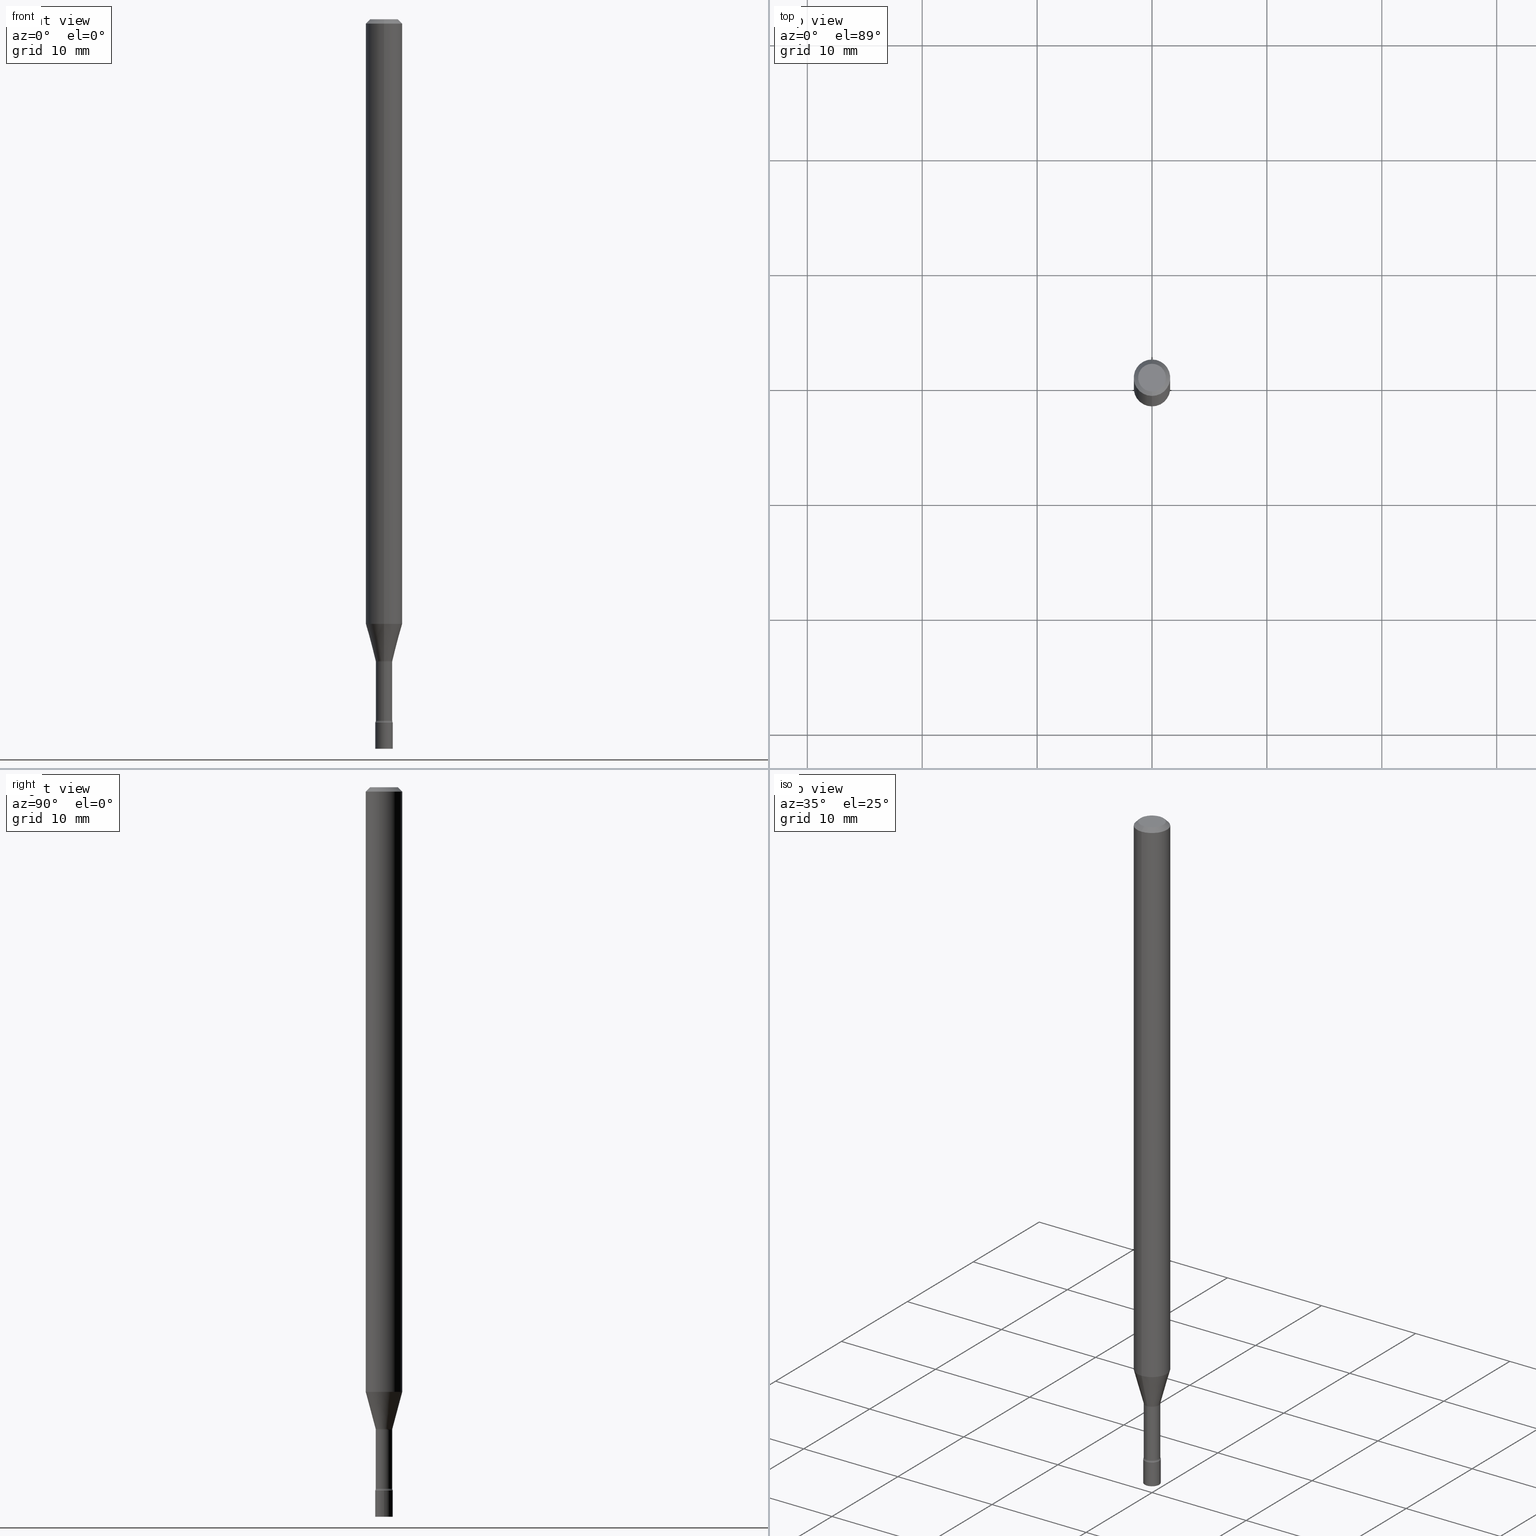
[diagram: canonical four-view strip — front | top / right | iso, engineering-drawing reading convention]
A machine part, canonical four-view strip (front | top / right | iso — engineering-drawing reading convention). The complete STEP part file that produces these views, byte-faithful:
ISO-10303-21;
HEADER;
FILE_DESCRIPTION (( 'STEP AP203' ),
    '1' );
FILE_NAME ('03547.STEP',
    '2024-03-08T21:45:39',
    ( '' ),
    ( '' ),
    'SwSTEP 2.0',
    'SolidWorks 2023',
    '' );
FILE_SCHEMA (( 'CONFIG_CONTROL_DESIGN' ));
ENDSEC;

DATA;
#1 = CARTESIAN_POINT ( 'NONE',  ( 5.876258667808851450E-29, -8.389448752772155933E-15, -2.402875394747777449 ) ) ;
#2 = CIRCLE ( 'NONE', #193, 0.01500000000000001159 ) ;
#3 = CONICAL_SURFACE ( 'NONE', #359, 0.06250000000000000000, 0.7853981633974483900 ) ;
#4 = CARTESIAN_POINT ( 'NONE',  ( 7.071634342479594361E-46, -1.009606916039626417E-31, -2.891679403986090112E-17 ) ) ;
#5 = DIRECTION ( 'NONE',  ( -2.445511190739736583E-29, 3.491420641748579346E-15, 1.000000000000000000 ) ) ;
#6 = VERTEX_POINT ( 'NONE', #299 ) ;
#7 = APPROVAL_STATUS ( 'not_yet_approved' ) ;
#8 = EDGE_LOOP ( 'NONE', ( #122, #386, #17, #406 ) ) ;
#9 = DIRECTION ( 'NONE',  ( -6.982962677686265922E-15, -1.000000000000000000, 3.483106191921935554E-15 ) ) ;
#10 = DIRECTION ( 'NONE',  ( 7.105427357601001859E-15, 1.000000000000000000, 0.000000000000000000 ) ) ;
#11 = PERSON_AND_ORGANIZATION ( #498, #143 ) ;
#12 = CONICAL_SURFACE ( 'NONE', #308, 0.02871111260566397427, 0.2617993877991500740 ) ;
#13 = CIRCLE ( 'NONE', #62, 0.02999999999999999889 ) ;
#14 = APPROVAL_ROLE ( '' ) ;
#15 = CARTESIAN_POINT ( 'NONE',  ( -0.02999999999999999889, 2.131628207280300479E-16, -1.475680527076471707E-30 ) ) ;
#16 = ORIENTED_EDGE ( 'NONE', *, *, #87, .F. ) ;
#17 = ORIENTED_EDGE ( 'NONE', *, *, #96, .T. ) ;
#18 = PERSON_AND_ORGANIZATION_ROLE ( 'creator' ) ;
#19 = DIRECTION ( 'NONE',  ( -1.000000000000000000, 6.982962677686265922E-15, -4.876176775795935793E-29 ) ) ;
#20 = DIRECTION ( 'NONE',  ( -2.445511190739736583E-29, 3.491420641748579346E-15, 1.000000000000000000 ) ) ;
#21 = AXIS2_PLACEMENT_3D ( 'NONE', #44, #114, #75 ) ;
#22 = CIRCLE ( 'NONE', #321, 0.02820000000000000631 ) ;
#23 = CARTESIAN_POINT ( 'NONE',  ( 3.668266786109612039E-31, -5.237130962622879693E-17, -0.01500000000000003067 ) ) ;
#24 = ORIENTED_EDGE ( 'NONE', *, *, #87, .T. ) ;
#25 = DIRECTION ( 'NONE',  ( 2.445511190739736583E-29, -3.491420641748579346E-15, -1.000000000000000000 ) ) ;
#26 = EDGE_CURVE ( 'NONE', #434, #364, #2, .T. ) ;
#27 = FACE_OUTER_BOUND ( 'NONE', #171, .T. ) ;
#28 = CARTESIAN_POINT ( 'NONE',  ( 2.094888803306491331E-16, 0.02999999999999126976, -2.500000000000000000 ) ) ;
#29 = CARTESIAN_POINT ( 'NONE',  ( -4.364351673553916201E-16, -0.06250000000000000000, 2.182137901092862091E-16 ) ) ;
#30 = FACE_OUTER_BOUND ( 'NONE', #190, .T. ) ;
#31 = VECTOR ( 'NONE', #438, 39.37007874015748143 ) ;
#32 = AXIS2_PLACEMENT_3D ( 'NONE', #252, #419, #249 ) ;
#33 = ORIENTED_EDGE ( 'NONE', *, *, #265, .F. ) ;
#34 = PRODUCT_DEFINITION_SHAPE ( 'NONE', 'NONE',  #465 ) ;
#35 = CARTESIAN_POINT ( 'NONE',  ( -2.004886277601454764E-16, -0.02871111260567164869, -2.198092501787273001 ) ) ;
#36 = EDGE_CURVE ( 'NONE', #129, #92, #514, .T. ) ;
#37 = DIRECTION ( 'NONE',  ( 6.982962677686265922E-15, 1.000000000000000000, -3.491420641748579346E-15 ) ) ;
#38 = AXIS2_PLACEMENT_3D ( 'NONE', #52, #48, #210 ) ;
#39 = AXIS2_PLACEMENT_3D ( 'NONE', #392, #147, #189 ) ;
#40 = DIRECTION ( 'NONE',  ( -2.445511190739736583E-29, 3.491420641748579346E-15, 1.000000000000000000 ) ) ;
#41 = FACE_OUTER_BOUND ( 'NONE', #261, .T. ) ;
#42 = CARTESIAN_POINT ( 'NONE',  ( -3.773273898774340269E-16, -0.04749999999999999362, 1.369256864431966220E-16 ) ) ;
#43 = EDGE_CURVE ( 'NONE', #267, #416, #138, .T. ) ;
#44 = CARTESIAN_POINT ( 'NONE',  ( 3.668266786109612039E-31, -5.237130962622879693E-17, -0.01500000000000003067 ) ) ;
#45 = DIRECTION ( 'NONE',  ( -2.445511190739736863E-29, 3.491420641748579346E-15, 1.000000000000000000 ) ) ;
#46 = AXIS2_PLACEMENT_3D ( 'NONE', #333, #374, #493 ) ;
#47 = DIRECTION ( 'NONE',  ( -2.445511190739736583E-29, 3.491420641748579346E-15, 1.000000000000000000 ) ) ;
#48 = DIRECTION ( 'NONE',  ( -2.445511190739736583E-29, 3.491420641748579346E-15, 1.000000000000000000 ) ) ;
#49 = ADVANCED_FACE ( 'NONE', ( #291 ), #457, .T. ) ;
#50 = ORIENTED_EDGE ( 'NONE', *, *, #218, .F. ) ;
#51 = VERTEX_POINT ( 'NONE', #452 ) ;
#52 = CARTESIAN_POINT ( 'NONE',  ( 5.067076339536280147E-29, -7.234190950408780565E-15, -2.071990657300387895 ) ) ;
#53 = CIRCLE ( 'NONE', #90, 0.06250000000000000000 ) ;
#54 = APPROVAL_PERSON_ORGANIZATION ( #451, #519, #496 ) ;
#55 = EDGE_LOOP ( 'NONE', ( #131, #325, #450, #397 ) ) ;
#56 = ORIENTED_EDGE ( 'NONE', *, *, #343, .T. ) ;
#57 = EDGE_CURVE ( 'NONE', #390, #61, #133, .T. ) ;
#58 = COORDINATED_UNIVERSAL_TIME_OFFSET ( 5, 0, .BEHIND. ) ;
#59 = CARTESIAN_POINT ( 'NONE',  ( -4.364351673553912750E-16, -0.06250000000000005551, -0.01499999999999981209 ) ) ;
#60 = VECTOR ( 'NONE', #45, 39.37007874015748143 ) ;
#61 = VERTEX_POINT ( 'NONE', #362 ) ;
#62 = AXIS2_PLACEMENT_3D ( 'NONE', #154, #517, #231 ) ;
#63 = DIRECTION ( 'NONE',  ( -1.807323732225328562E-15, -0.2588190451025179639, 0.9659258262890690894 ) ) ;
#64 = ORIENTED_EDGE ( 'NONE', *, *, #444, .F. ) ;
#65 = EDGE_CURVE ( 'NONE', #92, #129, #349, .T. ) ;
#66 = VERTEX_POINT ( 'NONE', #119 ) ;
#67 = AXIS2_PLACEMENT_3D ( 'NONE', #166, #329, #488 ) ;
#68 = DIRECTION ( 'NONE',  ( 1.000000000000000000, -6.982962677686267499E-15, 4.876176775795936353E-29 ) ) ;
#69 = CC_DESIGN_APPROVAL ( #519, ( #167 ) ) ;
#70 = EDGE_CURVE ( 'NONE', #51, #129, #159, .T. ) ;
#71 = CARTESIAN_POINT ( 'NONE',  ( -2.094888803305290783E-16, -0.03000000000000842271, -2.410000000000000142 ) ) ;
#72 = AXIS2_PLACEMENT_3D ( 'NONE', #239, #508, #188 ) ;
#73 = AXIS2_PLACEMENT_3D ( 'NONE', #79, #443, #482 ) ;
#74 = CIRCLE ( 'NONE', #381, 0.01500000000000002720 ) ;
#75 = DIRECTION ( 'NONE',  ( 6.982962677686265922E-15, 1.000000000000000000, -3.483106191921935554E-15 ) ) ;
#76 = LINE ( 'NONE', #476, #478 ) ;
#77 = CARTESIAN_POINT ( 'NONE',  ( 0.000000000000000000, 0.000000000000000000, 0.000000000000000000 ) ) ;
#78 = DIRECTION ( 'NONE',  ( -6.982962677686265922E-15, -1.000000000000000000, 3.491420641748579346E-15 ) ) ;
#79 = CARTESIAN_POINT ( 'NONE',  ( 5.375459811401880922E-29, -7.674465533212861118E-15, -2.198092501787273001 ) ) ;
#80 = DIRECTION ( 'NONE',  ( -2.445511190739736583E-29, 3.491420641748579346E-15, 1.000000000000000000 ) ) ;
#81 = AXIS2_PLACEMENT_3D ( 'NONE', #442, #40, #278 ) ;
#82 = LINE ( 'NONE', #273, #212 ) ;
#83 = CARTESIAN_POINT ( 'NONE',  ( 0.000000000000000000, 0.000000000000000000, 0.000000000000000000 ) ) ;
#84 = EDGE_CURVE ( 'NONE', #364, #269, #426, .T. ) ;
#85 = DATE_AND_TIME ( #330, #310 ) ;
#86 = ORIENTED_EDGE ( 'NONE', *, *, #160, .T. ) ;
#87 = EDGE_CURVE ( 'NONE', #431, #416, #258, .T. ) ;
#88 = ORIENTED_EDGE ( 'NONE', *, *, #192, .F. ) ;
#89 = ORIENTED_EDGE ( 'NONE', *, *, #343, .F. ) ;
#90 = AXIS2_PLACEMENT_3D ( 'NONE', #263, #469, #9 ) ;
#91 = ORIENTED_EDGE ( 'NONE', *, *, #70, .F. ) ;
#92 = VERTEX_POINT ( 'NONE', #277 ) ;
#93 = APPROVAL_PERSON_ORGANIZATION ( #413, #491, #286 ) ;
#94 = FACE_OUTER_BOUND ( 'NONE', #463, .T. ) ;
#95 = ORIENTED_EDGE ( 'NONE', *, *, #153, .F. ) ;
#96 = EDGE_CURVE ( 'NONE', #472, #61, #490, .T. ) ;
#97 = ORIENTED_EDGE ( 'NONE', *, *, #84, .T. ) ;
#98 = CYLINDRICAL_SURFACE ( 'NONE', #427, 0.02999999999999999889 ) ;
#99 = AXIS2_PLACEMENT_3D ( 'NONE', #251, #408, #502 ) ;
#100 = CIRCLE ( 'NONE', #505, 0.02999999999999999889 ) ;
#101 = EDGE_LOOP ( 'NONE', ( #368, #466, #412, #150 ) ) ;
#102 = DIRECTION ( 'NONE',  ( -6.982962677686265922E-15, -1.000000000000000000, 0.000000000000000000 ) ) ;
#103 = CC_DESIGN_APPROVAL ( #222, ( #465 ) ) ;
#104 = ORIENTED_EDGE ( 'NONE', *, *, #520, .T. ) ;
#105 = ORIENTED_EDGE ( 'NONE', *, *, #218, .T. ) ;
#106 = DIRECTION ( 'NONE',  ( -6.982962677686266711E-15, -1.000000000000000000, 3.491420641748579740E-15 ) ) ;
#107 = ADVANCED_FACE ( 'NONE', ( #403 ), #459, .F. ) ;
#108 = ORIENTED_EDGE ( 'NONE', *, *, #344, .F. ) ;
#109 = DIRECTION ( 'NONE',  ( -6.982962677686266711E-15, -1.000000000000000000, 3.491420641748579346E-15 ) ) ;
#110 = ADVANCED_FACE ( 'NONE', ( #432 ), #148, .T. ) ;
#111 = AXIS2_PLACEMENT_3D ( 'NONE', #376, #20, #198 ) ;
#112 = DIRECTION ( 'NONE',  ( 7.105427357600997914E-15, 1.000000000000000000, 0.000000000000000000 ) ) ;
#113 = ADVANCED_FACE ( 'NONE', ( #30 ), #98, .T. ) ;
#114 = DIRECTION ( 'NONE',  ( 2.445511190739736583E-29, -3.491420641748579346E-15, -1.000000000000000000 ) ) ;
#115 = CARTESIAN_POINT ( 'NONE',  ( 5.893579822906179826E-29, -8.414470026611981678E-15, -2.410000000000000142 ) ) ;
#116 = DIRECTION ( 'NONE',  ( -2.445511190739736583E-29, 3.491420641748579346E-15, 1.000000000000000000 ) ) ;
#117 = CONICAL_SURFACE ( 'NONE', #21, 0.06250000000000000000, 0.7853981633974483900 ) ;
#118 = CARTESIAN_POINT ( 'NONE',  ( 0.000000000000000000, 0.000000000000000000, 0.000000000000000000 ) ) ;
#119 = CARTESIAN_POINT ( 'NONE',  ( -1.969195475106987639E-16, -0.02820000000000767726, -2.201974787463810923 ) ) ;
#120 = DIRECTION ( 'NONE',  ( -6.982962677686266711E-15, -1.000000000000000000, 3.491420641748579740E-15 ) ) ;
#121 = DIRECTION ( 'NONE',  ( -6.982962677686265133E-15, -1.000000000000000000, 0.000000000000000000 ) ) ;
#122 = ORIENTED_EDGE ( 'NONE', *, *, #499, .F. ) ;
#123 =( CONVERSION_BASED_UNIT ( 'INCH', #235 ) LENGTH_UNIT ( ) NAMED_UNIT ( #146 ) );
#124 = DIRECTION ( 'NONE',  ( 1.000000000000000000, -6.982962677686268288E-15, 0.000000000000000000 ) ) ;
#125 = CC_DESIGN_DATE_AND_TIME_ASSIGNMENT ( #85, #163, ( #465 ) ) ;
#126 = VECTOR ( 'NONE', #155, 39.37007874015748143 ) ;
#127 = APPROVAL_DATE_TIME ( #300, #491 ) ;
#128 = FACE_OUTER_BOUND ( 'NONE', #55, .T. ) ;
#129 = VERTEX_POINT ( 'NONE', #387 ) ;
#130 = CARTESIAN_POINT ( 'NONE',  ( 4.364351673553919652E-16, 0.06249999999999995143, -0.01500000000000024751 ) ) ;
#131 = ORIENTED_EDGE ( 'NONE', *, *, #520, .F. ) ;
#132 = PERSON_AND_ORGANIZATION_ROLE ( 'classification_officer' ) ;
#133 = CIRCLE ( 'NONE', #436, 0.06250000000000000000 ) ;
#134 = AXIS2_PLACEMENT_3D ( 'NONE', #77, #318, #354 ) ;
#135 = ORIENTED_EDGE ( 'NONE', *, *, #422, .F. ) ;
#136 = CALENDAR_DATE ( 2024, 8, 3 ) ;
#137 = LOCAL_TIME ( 16, 45, 39.00000000000000000, #174 ) ;
#138 = LINE ( 'NONE', #169, #283 ) ;
#139 = CC_DESIGN_PERSON_AND_ORGANIZATION_ASSIGNMENT ( #378, #18, ( #465 ) ) ;
#140 = CARTESIAN_POINT ( 'NONE',  ( 2.131628207280890399E-16, 0.02999999999999159589, -2.410000000000000142 ) ) ;
#141 = AXIS2_PLACEMENT_3D ( 'NONE', #471, #435, #109 ) ;
#142 = EDGE_LOOP ( 'NONE', ( #33, #271, #224, #95 ) ) ;
#143 = ORGANIZATION ( 'UNSPECIFIED', 'UNSPECIFIED', '' ) ;
#144 = ADVANCED_BREP_SHAPE_REPRESENTATION ( '03547', ( #280, #460, #32 ), #246 ) ;
#145 = DIRECTION ( 'NONE',  ( -2.445511190739736583E-29, 3.491420641748579346E-15, 1.000000000000000000 ) ) ;
#146 = DIMENSIONAL_EXPONENTS ( 1.000000000000000000, 0.000000000000000000, 0.000000000000000000, 0.000000000000000000, 0.000000000000000000, 0.000000000000000000, 0.000000000000000000 ) ;
#147 = DIRECTION ( 'NONE',  ( -2.445511190739736583E-29, 3.491420641748579346E-15, 1.000000000000000000 ) ) ;
#148 = CONICAL_SURFACE ( 'NONE', #468, 0.02871111260566397427, 0.2617993877991500740 ) ;
#149 = LOCAL_TIME ( 16, 45, 39.00000000000000000, #462 ) ;
#150 = ORIENTED_EDGE ( 'NONE', *, *, #367, .F. ) ;
#151 = CARTESIAN_POINT ( 'NONE',  ( -4.364351673553411330E-16, -0.06250000000000725808, -2.071990657300387451 ) ) ;
#152 = LINE ( 'NONE', #400, #31 ) ;
#153 = EDGE_CURVE ( 'NONE', #61, #390, #53, .T. ) ;
#154 = CARTESIAN_POINT ( 'NONE',  ( 5.893681969682766022E-29, -8.414323746614077986E-15, -2.410000000000000142 ) ) ;
#155 = DIRECTION ( 'NONE',  ( -2.445468806185136877E-29, 3.491481338843145188E-15, 1.000000000000000000 ) ) ;
#156 = CIRCLE ( 'NONE', #448, 0.02999999999999999889 ) ;
#157 = PLANE ( 'NONE',  #72 ) ;
#158 = FACE_OUTER_BOUND ( 'NONE', #220, .T. ) ;
#159 = LINE ( 'NONE', #208, #126 ) ;
#160 = EDGE_CURVE ( 'NONE', #289, #267, #414, .T. ) ;
#161 = CYLINDRICAL_SURFACE ( 'NONE', #486, 0.06250000000000000000 ) ;
#162 = ORIENTED_EDGE ( 'NONE', *, *, #499, .T. ) ;
#163 = DATE_TIME_ROLE ( 'creation_date' ) ;
#164 = VECTOR ( 'NONE', #63, 39.37007874015748854 ) ;
#165 = ORIENTED_EDGE ( 'NONE', *, *, #344, .T. ) ;
#166 = CARTESIAN_POINT ( 'NONE',  ( 5.375459811401880922E-29, -7.674465533212861118E-15, -2.198092501787273001 ) ) ;
#167 = SECURITY_CLASSIFICATION ( '', '', #296 ) ;
#168 = ORIENTED_EDGE ( 'NONE', *, *, #192, .T. ) ;
#169 = CARTESIAN_POINT ( 'NONE',  ( 2.040047249755015045E-16, 0.02871111260565629986, -2.198092501787273001 ) ) ;
#170 = DATE_AND_TIME ( #136, #149 ) ;
#171 = EDGE_LOOP ( 'NONE', ( #382, #104, #168, #339 ) ) ;
#172 = COORDINATED_UNIVERSAL_TIME_OFFSET ( 5, 0, .BEHIND. ) ;
#173 = ORIENTED_EDGE ( 'NONE', *, *, #57, .F. ) ;
#174 = COORDINATED_UNIVERSAL_TIME_OFFSET ( 5, 0, .BEHIND. ) ;
#175 = CARTESIAN_POINT ( 'NONE',  ( 5.876156823005485882E-29, -8.389594600327222537E-15, -2.402875394747777449 ) ) ;
#176 = ADVANCED_FACE ( 'NONE', ( #243 ), #411, .T. ) ;
#177 = VECTOR ( 'NONE', #425, 39.37007874015748143 ) ;
#178 = FACE_OUTER_BOUND ( 'NONE', #417, .T. ) ;
#179 = DIRECTION ( 'NONE',  ( 1.000000000000000000, -7.105427357601001070E-15, 4.926314765217056532E-29 ) ) ;
#180 = ORIENTED_EDGE ( 'NONE', *, *, #422, .T. ) ;
#181 = CC_DESIGN_PERSON_AND_ORGANIZATION_ASSIGNMENT ( #338, #132, ( #167 ) ) ;
#182 = ORIENTED_EDGE ( 'NONE', *, *, #385, .F. ) ;
#183 = DIRECTION ( 'NONE',  ( -2.445511190739736583E-29, 3.491420641748579346E-15, 1.000000000000000000 ) ) ;
#184 = PLANE ( 'NONE',  #388 ) ;
#185 = DIRECTION ( 'NONE',  ( -6.982962677686266711E-15, -1.000000000000000000, 3.491420641748579346E-15 ) ) ;
#186 = AXIS2_PLACEMENT_3D ( 'NONE', #175, #461, #185 ) ;
#187 = EDGE_LOOP ( 'NONE', ( #340, #242, #455, #91 ) ) ;
#188 = DIRECTION ( 'NONE',  ( -6.982962677686265922E-15, -1.000000000000000000, 3.491420641748579346E-15 ) ) ;
#189 = DIRECTION ( 'NONE',  ( -6.982962677686265133E-15, -1.000000000000000000, 0.000000000000000000 ) ) ;
#190 = EDGE_LOOP ( 'NONE', ( #182, #105, #500, #229 ) ) ;
#191 = ORIENTED_EDGE ( 'NONE', *, *, #26, .F. ) ;
#192 = EDGE_CURVE ( 'NONE', #495, #66, #228, .T. ) ;
#193 = AXIS2_PLACEMENT_3D ( 'NONE', #303, #179, #10 ) ;
#194 = VECTOR ( 'NONE', #420, 39.37007874015748143 ) ;
#195 = CC_DESIGN_SECURITY_CLASSIFICATION ( #167, ( #275 ) ) ;
#196 = CARTESIAN_POINT ( 'NONE',  ( 2.003730514844069441E-16, 0.02819999999999230067, -2.201974787463810923 ) ) ;
#197 = CYLINDRICAL_SURFACE ( 'NONE', #134, 0.02819999999999999590 ) ;
#198 = DIRECTION ( 'NONE',  ( -6.982962677686265922E-15, -1.000000000000000000, 3.491420641748579346E-15 ) ) ;
#199 = DIRECTION ( 'NONE',  ( -2.445511190739736583E-29, 3.491420641748579346E-15, 1.000000000000000000 ) ) ;
#200 = CARTESIAN_POINT ( 'NONE',  ( 2.067679361062481029E-16, 0.02819999999999161719, -2.402875394747777449 ) ) ;
#201 = CARTESIAN_POINT ( 'NONE',  ( 3.240469674128074148E-16, 0.02871111260565629986, -2.198092501787273001 ) ) ;
#202 = CARTESIAN_POINT ( 'NONE',  ( 3.840629472727447874E-16, 0.04749999999999999362, -1.947592745229184119E-16 ) ) ;
#203 = AXIS2_PLACEMENT_3D ( 'NONE', #483, #446, #124 ) ;
#204 = AXIS2_PLACEMENT_3D ( 'NONE', #384, #145, #106 ) ;
#205 = EDGE_CURVE ( 'NONE', #289, #431, #312, .T. ) ;
#206 = FACE_OUTER_BOUND ( 'NONE', #372, .T. ) ;
#207 = ORIENTED_EDGE ( 'NONE', *, *, #456, .F. ) ;
#208 = CARTESIAN_POINT ( 'NONE',  ( 0.02999999999999999889, -2.094888803305880210E-16, 1.462853032738780878E-30 ) ) ;
#209 = APPLICATION_PROTOCOL_DEFINITION ( 'international standard', 'config_control_design', 1994, #454 ) ;
#210 = DIRECTION ( 'NONE',  ( -6.982962677686265922E-15, -1.000000000000000000, 4.370956789862821150E-15 ) ) ;
#211 = CIRCLE ( 'NONE', #497, 0.01500000000000001159 ) ;
#212 = VECTOR ( 'NONE', #399, 39.37007874015748143 ) ;
#213 = ORIENTED_EDGE ( 'NONE', *, *, #276, .F. ) ;
#214 = EDGE_LOOP ( 'NONE', ( #223, #394, #97, #108 ) ) ;
#215 = CALENDAR_DATE ( 2024, 8, 3 ) ;
#216 = DIRECTION ( 'NONE',  ( -6.982962677686265922E-15, -1.000000000000000000, 3.491420641748579346E-15 ) ) ;
#217 = DATE_AND_TIME ( #255, #389 ) ;
#218 = EDGE_CURVE ( 'NONE', #6, #51, #100, .T. ) ;
#219 = CYLINDRICAL_SURFACE ( 'NONE', #111, 0.02819999999999999590 ) ;
#220 = EDGE_LOOP ( 'NONE', ( #24, #314, #173, #509 ) ) ;
#221 = CLOSED_SHELL ( 'NONE', ( #285, #264, #379, #405, #429, #477, #110, #49, #245, #254, #313, #107, #393, #391 ) ) ;
#222 = APPROVAL ( #370, 'UNSPECIFIED' ) ;
#223 = ORIENTED_EDGE ( 'NONE', *, *, #511, .F. ) ;
#224 = ORIENTED_EDGE ( 'NONE', *, *, #281, .T. ) ;
#225 = PLANE ( 'NONE',  #371 ) ;
#226 = LINE ( 'NONE', #29, #177 ) ;
#227 = CLOSED_SHELL ( 'NONE', ( #176, #475, #113, #230 ) ) ;
#228 = CIRCLE ( 'NONE', #39, 0.02819999999999998896 ) ;
#229 = ORIENTED_EDGE ( 'NONE', *, *, #65, .F. ) ;
#230 = ADVANCED_FACE ( 'NONE', ( #94 ), #225, .T. ) ;
#231 = DIRECTION ( 'NONE',  ( -6.982962677686265922E-15, -1.000000000000000000, 0.000000000000000000 ) ) ;
#232 = CIRCLE ( 'NONE', #73, 0.02871111260566397427 ) ;
#233 = DIRECTION ( 'NONE',  ( -1.000000000000000000, 6.982962677686265922E-15, -4.883557194083112340E-29 ) ) ;
#234 = CARTESIAN_POINT ( 'NONE',  ( 5.384953984469503367E-29, -7.688020225561090529E-15, -2.201974787463810923 ) ) ;
#235 = LENGTH_MEASURE_WITH_UNIT ( LENGTH_MEASURE( 0.02539999999999999897 ), #279 );
#236 = CIRCLE ( 'NONE', #297, 0.06250000000000000000 ) ;
#237 = DESIGN_CONTEXT ( 'detailed design', #454, 'design' ) ;
#238 = ORIENTED_EDGE ( 'NONE', *, *, #494, .F. ) ;
#239 = CARTESIAN_POINT ( 'NONE',  ( 2.094888803306469144E-16, 0.02999999999999158548, -2.410000000000000142 ) ) ;
#240 = DATE_TIME_ROLE ( 'classification_date' ) ;
#241 = CARTESIAN_POINT ( 'NONE',  ( 5.893681969682766022E-29, -8.414323746614077986E-15, -2.410000000000000142 ) ) ;
#242 = ORIENTED_EDGE ( 'NONE', *, *, #385, .T. ) ;
#243 = FACE_OUTER_BOUND ( 'NONE', #187, .T. ) ;
#244 = TOROIDAL_SURFACE ( 'NONE', #337, 0.04319999999999998841, 0.01500000000000002373 ) ;
#245 = ADVANCED_FACE ( 'NONE', ( #383 ), #3, .T. ) ;
#246 =( GEOMETRIC_REPRESENTATION_CONTEXT ( 3 ) GLOBAL_UNCERTAINTY_ASSIGNED_CONTEXT ( ( #449 ) ) GLOBAL_UNIT_ASSIGNED_CONTEXT ( ( #123, #282, #407 ) ) REPRESENTATION_CONTEXT ( 'NONE', 'WORKASPACE' ) );
#247 = ORIENTED_EDGE ( 'NONE', *, *, #456, .T. ) ;
#248 = DIRECTION ( 'NONE',  ( -2.445468806185136597E-29, 3.491481338843145583E-15, 1.000000000000000000 ) ) ;
#249 = DIRECTION ( 'NONE',  ( 1.000000000000000000, 0.000000000000000000, 0.000000000000000000 ) ) ;
#250 = DIRECTION ( 'NONE',  ( -2.445511190739736583E-29, 3.491420641748579346E-15, 1.000000000000000000 ) ) ;
#251 = CARTESIAN_POINT ( 'NONE',  ( 5.893579822906179826E-29, -8.414470026611981678E-15, -2.410000000000000142 ) ) ;
#252 = CARTESIAN_POINT ( 'NONE',  ( 0.000000000000000000, 0.000000000000000000, 0.000000000000000000 ) ) ;
#253 = LINE ( 'NONE', #15, #194 ) ;
#254 = ADVANCED_FACE ( 'NONE', ( #178 ), #184, .F. ) ;
#255 = CALENDAR_DATE ( 2024, 8, 3 ) ;
#256 = ORIENTED_EDGE ( 'NONE', *, *, #511, .T. ) ;
#257 = CARTESIAN_POINT ( 'NONE',  ( 0.000000000000000000, 0.000000000000000000, 0.000000000000000000 ) ) ;
#258 = CIRCLE ( 'NONE', #38, 0.06250000000000000000 ) ;
#259 = AXIS2_PLACEMENT_3D ( 'NONE', #4, #199, #120 ) ;
#260 = CARTESIAN_POINT ( 'NONE',  ( 6.113672015462842613E-29, -8.728703347107864943E-15, -2.500000000000000000 ) ) ;
#261 = EDGE_LOOP ( 'NONE', ( #180, #247, #238, #64 ) ) ;
#262 = CARTESIAN_POINT ( 'NONE',  ( 5.384860654748895550E-29, -7.688153879032997927E-15, -2.201974787463810923 ) ) ;
#263 = CARTESIAN_POINT ( 'NONE',  ( 3.668266786109612039E-31, -5.237130962622879693E-17, -0.01500000000000003067 ) ) ;
#264 = ADVANCED_FACE ( 'NONE', ( #41 ), #197, .T. ) ;
#265 = EDGE_CURVE ( 'NONE', #416, #61, #152, .T. ) ;
#266 = TOROIDAL_SURFACE ( 'NONE', #46, 0.04320000000000001616, 0.01500000000000000812 ) ;
#267 = VERTEX_POINT ( 'NONE', #201 ) ;
#268 = CC_DESIGN_PERSON_AND_ORGANIZATION_ASSIGNMENT ( #326, #332, ( #275 ) ) ;
#269 = VERTEX_POINT ( 'NONE', #71 ) ;
#270 = CARTESIAN_POINT ( 'NONE',  ( -3.016639876759927745E-16, -0.04320000000000768364, -2.201974787463810923 ) ) ;
#271 = ORIENTED_EDGE ( 'NONE', *, *, #367, .T. ) ;
#272 = DIRECTION ( 'NONE',  ( -6.982962677686263555E-15, -1.000000000000000000, 0.000000000000000000 ) ) ;
#273 = CARTESIAN_POINT ( 'NONE',  ( -4.287811248607203282E-16, -0.06250000000000005551, -0.01499999999999981209 ) ) ;
#274 = CIRCLE ( 'NONE', #259, 0.04749999999999999362 ) ;
#275 = PRODUCT_DEFINITION_FORMATION_WITH_SPECIFIED_SOURCE ( 'ANY', '', #510, .NOT_KNOWN. ) ;
#276 = EDGE_CURVE ( 'NONE', #51, #6, #156, .T. ) ;
#277 = CARTESIAN_POINT ( 'NONE',  ( -0.02999999999999999889, -8.358423866131893065E-15, -2.410000000000000142 ) ) ;
#278 = DIRECTION ( 'NONE',  ( -6.982962677686265133E-15, -1.000000000000000000, 0.000000000000000000 ) ) ;
#279 =( LENGTH_UNIT ( ) NAMED_UNIT ( * ) SI_UNIT ( $, .METRE. ) );
#280 = MANIFOLD_SOLID_BREP ( 'Body-Move/Copy2[1]', #227 ) ;
#281 = EDGE_CURVE ( 'NONE', #431, #390, #226, .T. ) ;
#282 =( NAMED_UNIT ( * ) PLANE_ANGLE_UNIT ( ) SI_UNIT ( $, .RADIAN. ) );
#283 = VECTOR ( 'NONE', #295, 39.37007874015748854 ) ;
#284 = ORIENTED_EDGE ( 'NONE', *, *, #513, .T. ) ;
#285 = ADVANCED_FACE ( 'NONE', ( #27 ), #515, .F. ) ;
#286 = APPROVAL_ROLE ( '' ) ;
#287 = DIRECTION ( 'NONE',  ( -6.982962677686265922E-15, -1.000000000000000000, 3.483106191921935554E-15 ) ) ;
#288 = CC_DESIGN_DATE_AND_TIME_ASSIGNMENT ( #458, #240, ( #167 ) ) ;
#289 = VERTEX_POINT ( 'NONE', #474 ) ;
#290 = ORIENTED_EDGE ( 'NONE', *, *, #57, .T. ) ;
#291 = FACE_OUTER_BOUND ( 'NONE', #142, .T. ) ;
#292 = APPROVAL_DATE_TIME ( #217, #222 ) ;
#293 = DIRECTION ( 'NONE',  ( 4.937700262164548042E-15, 0.7071067811865451302, -0.7071067811865499042 ) ) ;
#294 = EDGE_CURVE ( 'NONE', #472, #516, #274, .T. ) ;
#295 = DIRECTION ( 'NONE',  ( 1.839019923739598738E-15, 0.2588190451025247363, 0.9659258262890673130 ) ) ;
#296 = SECURITY_CLASSIFICATION_LEVEL ( 'unclassified' ) ;
#297 = AXIS2_PLACEMENT_3D ( 'NONE', #309, #116, #402 ) ;
#298 = LOCAL_TIME ( 16, 45, 39.00000000000000000, #304 ) ;
#299 = CARTESIAN_POINT ( 'NONE',  ( -0.02999999999999999889, -8.358423866131893065E-15, -2.500000000000000000 ) ) ;
#300 = DATE_AND_TIME ( #215, #137 ) ;
#301 = FACE_OUTER_BOUND ( 'NONE', #214, .T. ) ;
#302 = PRODUCT_RELATED_PRODUCT_CATEGORY ( 'detail', '', ( #510 ) ) ;
#303 = CARTESIAN_POINT ( 'NONE',  ( 3.069544618484221160E-16, 0.04319999999999162704, -2.402875394747777893 ) ) ;
#304 = COORDINATED_UNIVERSAL_TIME_OFFSET ( 5, 0, .BEHIND. ) ;
#305 = DIRECTION ( 'NONE',  ( -2.445468806185136597E-29, 3.491481338843145583E-15, 1.000000000000000000 ) ) ;
#306 = CARTESIAN_POINT ( 'NONE',  ( -1.969195475106939815E-16, -0.02820000000000839196, -2.402875394747777449 ) ) ;
#307 = AXIS2_PLACEMENT_3D ( 'NONE', #430, #248, #68 ) ;
#308 = AXIS2_PLACEMENT_3D ( 'NONE', #358, #322, #445 ) ;
#309 = CARTESIAN_POINT ( 'NONE',  ( 5.067076339536280147E-29, -7.234190950408780565E-15, -2.071990657300387895 ) ) ;
#310 = LOCAL_TIME ( 16, 45, 39.00000000000000000, #58 ) ;
#311 = EDGE_LOOP ( 'NONE', ( #191, #135, #165, #284 ) ) ;
#312 = LINE ( 'NONE', #35, #164 ) ;
#313 = ADVANCED_FACE ( 'NONE', ( #319 ), #157, .F. ) ;
#314 = ORIENTED_EDGE ( 'NONE', *, *, #265, .T. ) ;
#315 = CC_DESIGN_PERSON_AND_ORGANIZATION_ASSIGNMENT ( #335, #492, ( #510 ) ) ;
#316 = CARTESIAN_POINT ( 'NONE',  ( 4.440892098501129061E-16, 0.06249999999999273498, -2.071990657300387895 ) ) ;
#317 = CARTESIAN_POINT ( 'NONE',  ( 2.003730514843481987E-16, 0.02819999999999999590, -9.845806209730992005E-17 ) ) ;
#318 = DIRECTION ( 'NONE',  ( -2.445511190739736583E-29, 3.491420641748579346E-15, 1.000000000000000000 ) ) ;
#319 = FACE_OUTER_BOUND ( 'NONE', #512, .T. ) ;
#320 = DIRECTION ( 'NONE',  ( 1.000000000000000000, -6.982962677686265922E-15, 4.876176775795935793E-29 ) ) ;
#321 = AXIS2_PLACEMENT_3D ( 'NONE', #1, #47, #121 ) ;
#322 = DIRECTION ( 'NONE',  ( -2.445511190739736583E-29, 3.491420641748579346E-15, 1.000000000000000000 ) ) ;
#323 = DIRECTION ( 'NONE',  ( -6.982962677686265133E-15, -1.000000000000000000, 0.000000000000000000 ) ) ;
#324 = DIRECTION ( 'NONE',  ( -2.445511190739736583E-29, 3.491420641748579346E-15, 1.000000000000000000 ) ) ;
#325 = ORIENTED_EDGE ( 'NONE', *, *, #160, .F. ) ;
#326 = PERSON_AND_ORGANIZATION ( #498, #143 ) ;
#327 = VECTOR ( 'NONE', #293, 39.37007874015748143 ) ;
#328 = DIRECTION ( 'NONE',  ( -2.445511190739736583E-29, 3.491420641748579346E-15, 1.000000000000000000 ) ) ;
#329 = DIRECTION ( 'NONE',  ( -2.445511190739736583E-29, 3.491420641748579346E-15, 1.000000000000000000 ) ) ;
#330 = CALENDAR_DATE ( 2024, 8, 3 ) ;
#331 = ORIENTED_EDGE ( 'NONE', *, *, #96, .F. ) ;
#332 = PERSON_AND_ORGANIZATION_ROLE ( 'design_supplier' ) ;
#333 = CARTESIAN_POINT ( 'NONE',  ( 5.876156823005485882E-29, -8.389594600327222537E-15, -2.402875394747777449 ) ) ;
#334 = ORIENTED_EDGE ( 'NONE', *, *, #36, .T. ) ;
#335 = PERSON_AND_ORGANIZATION ( #498, #143 ) ;
#336 = EDGE_LOOP ( 'NONE', ( #207, #256, #504, #88 ) ) ;
#337 = AXIS2_PLACEMENT_3D ( 'NONE', #262, #250, #418 ) ;
#338 = PERSON_AND_ORGANIZATION ( #498, #143 ) ;
#339 = ORIENTED_EDGE ( 'NONE', *, *, #421, .F. ) ;
#340 = ORIENTED_EDGE ( 'NONE', *, *, #276, .T. ) ;
#341 = DIRECTION ( 'NONE',  ( -2.445468806185136597E-29, 3.491481338843145583E-15, 1.000000000000000000 ) ) ;
#342 = CARTESIAN_POINT ( 'NONE',  ( 3.316907271900976096E-16, 0.04749999999999999362, -1.803008775029879644E-16 ) ) ;
#343 = EDGE_CURVE ( 'NONE', #516, #472, #440, .T. ) ;
#344 = EDGE_CURVE ( 'NONE', #363, #269, #211, .T. ) ;
#345 = APPLICATION_CONTEXT ( 'configuration controlled 3d designs of mechanical parts and assemblies' ) ;
#346 = ORIENTED_EDGE ( 'NONE', *, *, #513, .F. ) ;
#347 = ORIENTED_EDGE ( 'NONE', *, *, #65, .T. ) ;
#348 = ORIENTED_EDGE ( 'NONE', *, *, #43, .T. ) ;
#349 = CIRCLE ( 'NONE', #203, 0.02999999999999999889 ) ;
#350 = AXIS2_PLACEMENT_3D ( 'NONE', #115, #398, #320 ) ;
#351 = CC_DESIGN_APPROVAL ( #491, ( #275 ) ) ;
#352 = DIRECTION ( 'NONE',  ( -2.445468806185136597E-29, 3.491481338843145583E-15, 1.000000000000000000 ) ) ;
#353 = FACE_OUTER_BOUND ( 'NONE', #424, .T. ) ;
#354 = DIRECTION ( 'NONE',  ( -6.982962677686265922E-15, -1.000000000000000000, 3.491420641748579346E-15 ) ) ;
#355 = FACE_OUTER_BOUND ( 'NONE', #487, .T. ) ;
#356 = DIRECTION ( 'NONE',  ( -2.445511190739736583E-29, 3.491420641748579346E-15, 1.000000000000000000 ) ) ;
#357 = AXIS2_PLACEMENT_3D ( 'NONE', #83, #328, #216 ) ;
#358 = CARTESIAN_POINT ( 'NONE',  ( 5.375459811401880922E-29, -7.674465533212861118E-15, -2.198092501787273001 ) ) ;
#359 = AXIS2_PLACEMENT_3D ( 'NONE', #23, #25, #433 ) ;
#360 = CARTESIAN_POINT ( 'NONE',  ( 3.668266786109612039E-31, -5.237130962622879693E-17, -0.01500000000000003067 ) ) ;
#361 = DIRECTION ( 'NONE',  ( 1.000000000000000000, -7.105427357601001070E-15, 4.926314765217056532E-29 ) ) ;
#362 = CARTESIAN_POINT ( 'NONE',  ( 4.440892098501134977E-16, 0.06249999999999993755, -0.01500000000000024751 ) ) ;
#363 = VERTEX_POINT ( 'NONE', #306 ) ;
#364 = VERTEX_POINT ( 'NONE', #140 ) ;
#365 = CC_DESIGN_PERSON_AND_ORGANIZATION_ASSIGNMENT ( #11, #453, ( #275 ) ) ;
#366 = PERSON_AND_ORGANIZATION ( #498, #143 ) ;
#367 = EDGE_CURVE ( 'NONE', #416, #431, #236, .T. ) ;
#368 = ORIENTED_EDGE ( 'NONE', *, *, #43, .F. ) ;
#369 = ORIENTED_EDGE ( 'NONE', *, *, #84, .F. ) ;
#370 = APPROVAL_STATUS ( 'not_yet_approved' ) ;
#371 = AXIS2_PLACEMENT_3D ( 'NONE', #28, #506, #19 ) ;
#372 = EDGE_LOOP ( 'NONE', ( #334, #347 ) ) ;
#373 = MECHANICAL_CONTEXT ( 'NONE', #345, 'mechanical' ) ;
#374 = DIRECTION ( 'NONE',  ( -2.445511190739736583E-29, 3.491420641748579346E-15, 1.000000000000000000 ) ) ;
#375 = DIRECTION ( 'NONE',  ( 1.000000000000000000, -6.982962677686236734E-15, 0.000000000000000000 ) ) ;
#376 = CARTESIAN_POINT ( 'NONE',  ( 0.000000000000000000, 0.000000000000000000, 0.000000000000000000 ) ) ;
#377 = ORIENTED_EDGE ( 'NONE', *, *, #205, .F. ) ;
#378 = PERSON_AND_ORGANIZATION ( #498, #143 ) ;
#379 = ADVANCED_FACE ( 'NONE', ( #301 ), #266, .F. ) ;
#380 = CIRCLE ( 'NONE', #473, 0.01500000000000002720 ) ;
#381 = AXIS2_PLACEMENT_3D ( 'NONE', #479, #361, #112 ) ;
#382 = ORIENTED_EDGE ( 'NONE', *, *, #481, .F. ) ;
#383 = FACE_OUTER_BOUND ( 'NONE', #8, .T. ) ;
#384 = CARTESIAN_POINT ( 'NONE',  ( 7.071634342479594361E-46, -1.009606916039626417E-31, -2.891679403986090112E-17 ) ) ;
#385 = EDGE_CURVE ( 'NONE', #6, #92, #253, .T. ) ;
#386 = ORIENTED_EDGE ( 'NONE', *, *, #294, .F. ) ;
#387 = CARTESIAN_POINT ( 'NONE',  ( 0.02999999999999999889, -8.623958906942569995E-15, -2.410000000000000142 ) ) ;
#388 = AXIS2_PLACEMENT_3D ( 'NONE', #342, #467, #37 ) ;
#389 = LOCAL_TIME ( 16, 45, 39.00000000000000000, #172 ) ;
#390 = VERTEX_POINT ( 'NONE', #59 ) ;
#391 = ADVANCED_FACE ( 'NONE', ( #128 ), #244, .F. ) ;
#392 = CARTESIAN_POINT ( 'NONE',  ( 5.384953984469503367E-29, -7.688020225561090529E-15, -2.201974787463810923 ) ) ;
#393 = ADVANCED_FACE ( 'NONE', ( #507 ), #219, .T. ) ;
#394 = ORIENTED_EDGE ( 'NONE', *, *, #26, .T. ) ;
#395 = CARTESIAN_POINT ( 'NONE',  ( 6.113672015462842613E-29, -8.728703347107864943E-15, -2.500000000000000000 ) ) ;
#396 = CIRCLE ( 'NONE', #81, 0.02820000000000000631 ) ;
#397 = ORIENTED_EDGE ( 'NONE', *, *, #494, .T. ) ;
#398 = DIRECTION ( 'NONE',  ( -2.438088387897960049E-29, 3.491481338843145188E-15, 1.000000000000000000 ) ) ;
#399 = DIRECTION ( 'NONE',  ( -4.851104656540964275E-15, -0.7071067811865500152, -0.7071067811865450192 ) ) ;
#400 = CARTESIAN_POINT ( 'NONE',  ( 4.440892098500625669E-16, 0.06250000000000000000, -2.182137901092862091E-16 ) ) ;
#401 = DIRECTION ( 'NONE',  ( -2.445511190739736863E-29, 3.491420641748579346E-15, 1.000000000000000000 ) ) ;
#402 = DIRECTION ( 'NONE',  ( -6.982962677686265922E-15, -1.000000000000000000, 4.370956789862821150E-15 ) ) ;
#403 = FACE_OUTER_BOUND ( 'NONE', #311, .T. ) ;
#404 = LINE ( 'NONE', #317, #60 ) ;
#405 = ADVANCED_FACE ( 'NONE', ( #355 ), #117, .T. ) ;
#406 = ORIENTED_EDGE ( 'NONE', *, *, #153, .T. ) ;
#407 =( NAMED_UNIT ( * ) SI_UNIT ( $, .STERADIAN. ) SOLID_ANGLE_UNIT ( ) );
#408 = DIRECTION ( 'NONE',  ( -2.445468806185136597E-29, 3.491481338843145583E-15, 1.000000000000000000 ) ) ;
#409 = APPROVAL_STATUS ( 'not_yet_approved' ) ;
#410 = ORIENTED_EDGE ( 'NONE', *, *, #294, .T. ) ;
#411 = CYLINDRICAL_SURFACE ( 'NONE', #307, 0.02999999999999999889 ) ;
#412 = ORIENTED_EDGE ( 'NONE', *, *, #205, .T. ) ;
#413 = PERSON_AND_ORGANIZATION ( #498, #143 ) ;
#414 = CIRCLE ( 'NONE', #67, 0.02871111260566397427 ) ;
#415 = CIRCLE ( 'NONE', #428, 0.02819999999999998896 ) ;
#416 = VERTEX_POINT ( 'NONE', #316 ) ;
#417 = EDGE_LOOP ( 'NONE', ( #410, #56 ) ) ;
#418 = DIRECTION ( 'NONE',  ( -6.982962677686266711E-15, -1.000000000000000000, 3.491420641748579346E-15 ) ) ;
#419 = DIRECTION ( 'NONE',  ( 0.000000000000000000, 0.000000000000000000, 1.000000000000000000 ) ) ;
#420 = DIRECTION ( 'NONE',  ( -2.445468806185136877E-29, 3.491481338843145188E-15, 1.000000000000000000 ) ) ;
#421 = EDGE_CURVE ( 'NONE', #289, #66, #380, .T. ) ;
#422 = EDGE_CURVE ( 'NONE', #363, #434, #396, .T. ) ;
#423 = APPROVAL_DATE_TIME ( #170, #519 ) ;
#424 = EDGE_LOOP ( 'NONE', ( #86, #348, #16, #377 ) ) ;
#425 = DIRECTION ( 'NONE',  ( -2.445511190739736863E-29, 3.491420641748579346E-15, 1.000000000000000000 ) ) ;
#426 = CIRCLE ( 'NONE', #484, 0.02999999999999999889 ) ;
#427 = AXIS2_PLACEMENT_3D ( 'NONE', #257, #341, #470 ) ;
#428 = AXIS2_PLACEMENT_3D ( 'NONE', #234, #356, #323 ) ;
#429 = ADVANCED_FACE ( 'NONE', ( #158 ), #161, .T. ) ;
#430 = CARTESIAN_POINT ( 'NONE',  ( 0.000000000000000000, 0.000000000000000000, 0.000000000000000000 ) ) ;
#431 = VERTEX_POINT ( 'NONE', #151 ) ;
#432 = FACE_OUTER_BOUND ( 'NONE', #101, .T. ) ;
#433 = DIRECTION ( 'NONE',  ( 6.982962677686265922E-15, 1.000000000000000000, -3.483106191921935554E-15 ) ) ;
#434 = VERTEX_POINT ( 'NONE', #200 ) ;
#435 = DIRECTION ( 'NONE',  ( -2.445511190739736583E-29, 3.491420641748579346E-15, 1.000000000000000000 ) ) ;
#436 = AXIS2_PLACEMENT_3D ( 'NONE', #360, #324, #287 ) ;
#437 = DIRECTION ( 'NONE',  ( -1.000000000000000000, 6.982962677686265922E-15, -4.883557194083112340E-29 ) ) ;
#438 = DIRECTION ( 'NONE',  ( -2.445511190739736863E-29, 3.491420641748579346E-15, 1.000000000000000000 ) ) ;
#439 = APPLICATION_PROTOCOL_DEFINITION ( 'international standard', 'config_control_design', 1994, #345 ) ;
#440 = CIRCLE ( 'NONE', #204, 0.04749999999999999362 ) ;
#441 = APPROVAL_PERSON_ORGANIZATION ( #366, #222, #14 ) ;
#442 = CARTESIAN_POINT ( 'NONE',  ( 5.876258667808851450E-29, -8.389448752772155933E-15, -2.402875394747777449 ) ) ;
#443 = DIRECTION ( 'NONE',  ( -2.445511190739736583E-29, 3.491420641748579346E-15, 1.000000000000000000 ) ) ;
#444 = EDGE_CURVE ( 'NONE', #363, #66, #76, .T. ) ;
#445 = DIRECTION ( 'NONE',  ( -6.982962677686265922E-15, -1.000000000000000000, 0.000000000000000000 ) ) ;
#446 = DIRECTION ( 'NONE',  ( -2.445468806185136597E-29, 3.491481338843145583E-15, 1.000000000000000000 ) ) ;
#447 = PLANE ( 'NONE',  #350 ) ;
#448 = AXIS2_PLACEMENT_3D ( 'NONE', #395, #352, #518 ) ;
#449 = UNCERTAINTY_MEASURE_WITH_UNIT (LENGTH_MEASURE( 1.000000000000000082E-05 ), #123, 'distance_accuracy_value', 'NONE');
#450 = ORIENTED_EDGE ( 'NONE', *, *, #421, .T. ) ;
#451 = PERSON_AND_ORGANIZATION ( #498, #143 ) ;
#452 = CARTESIAN_POINT ( 'NONE',  ( 0.02999999999999999889, -8.938192227438451682E-15, -2.500000000000000000 ) ) ;
#453 = PERSON_AND_ORGANIZATION_ROLE ( 'creator' ) ;
#454 = APPLICATION_CONTEXT ( 'configuration controlled 3d designs of mechanical parts and assemblies' ) ;
#455 = ORIENTED_EDGE ( 'NONE', *, *, #36, .F. ) ;
#456 = EDGE_CURVE ( 'NONE', #434, #495, #404, .T. ) ;
#457 = CYLINDRICAL_SURFACE ( 'NONE', #357, 0.06250000000000000000 ) ;
#458 = DATE_AND_TIME ( #489, #298 ) ;
#459 = TOROIDAL_SURFACE ( 'NONE', #186, 0.04320000000000001616, 0.01500000000000000812 ) ;
#460 = MANIFOLD_SOLID_BREP ( 'Body-Move/Copy2[2]', #221 ) ;
#461 = DIRECTION ( 'NONE',  ( -2.445511190739736583E-29, 3.491420641748579346E-15, 1.000000000000000000 ) ) ;
#462 = COORDINATED_UNIVERSAL_TIME_OFFSET ( 5, 0, .BEHIND. ) ;
#463 = EDGE_LOOP ( 'NONE', ( #213, #50 ) ) ;
#464 = CARTESIAN_POINT ( 'NONE',  ( 5.375459811401880922E-29, -7.674465533212861118E-15, -2.198092501787273001 ) ) ;
#465 = PRODUCT_DEFINITION ( 'UNKNOWN', '', #275, #237 ) ;
#466 = ORIENTED_EDGE ( 'NONE', *, *, #481, .T. ) ;
#467 = DIRECTION ( 'NONE',  ( 2.445511190739736303E-29, -3.491420641748579346E-15, -1.000000000000000000 ) ) ;
#468 = AXIS2_PLACEMENT_3D ( 'NONE', #464, #183, #102 ) ;
#469 = DIRECTION ( 'NONE',  ( -2.445511190739736583E-29, 3.491420641748579346E-15, 1.000000000000000000 ) ) ;
#470 = DIRECTION ( 'NONE',  ( 1.000000000000000000, -6.982962677686267499E-15, 4.876176775795936353E-29 ) ) ;
#471 = CARTESIAN_POINT ( 'NONE',  ( 5.384860654748895550E-29, -7.688153879032997927E-15, -2.201974787463810923 ) ) ;
#472 = VERTEX_POINT ( 'NONE', #202 ) ;
#473 = AXIS2_PLACEMENT_3D ( 'NONE', #270, #233, #272 ) ;
#474 = CARTESIAN_POINT ( 'NONE',  ( -2.004886277601454764E-16, -0.02871111260567164869, -2.198092501787273001 ) ) ;
#475 = ADVANCED_FACE ( 'NONE', ( #206 ), #447, .T. ) ;
#476 = CARTESIAN_POINT ( 'NONE',  ( -1.969195475107526777E-16, -0.02819999999999999590, 9.845806209730992005E-17 ) ) ;
#477 = ADVANCED_FACE ( 'NONE', ( #353 ), #12, .T. ) ;
#478 = VECTOR ( 'NONE', #401, 39.37007874015748143 ) ;
#479 = CARTESIAN_POINT ( 'NONE',  ( 3.069544618484170377E-16, 0.04319999999999230011, -2.201974787463811367 ) ) ;
#480 = DIRECTION ( 'NONE',  ( -6.982962677686265922E-15, -1.000000000000000000, 0.000000000000000000 ) ) ;
#481 = EDGE_CURVE ( 'NONE', #267, #289, #232, .T. ) ;
#482 = DIRECTION ( 'NONE',  ( -6.982962677686265922E-15, -1.000000000000000000, 0.000000000000000000 ) ) ;
#483 = CARTESIAN_POINT ( 'NONE',  ( 5.893579822906179826E-29, -8.414470026611981678E-15, -2.410000000000000142 ) ) ;
#484 = AXIS2_PLACEMENT_3D ( 'NONE', #241, #80, #480 ) ;
#485 = SHAPE_DEFINITION_REPRESENTATION ( #34, #144 ) ;
#486 = AXIS2_PLACEMENT_3D ( 'NONE', #118, #5, #78 ) ;
#487 = EDGE_LOOP ( 'NONE', ( #89, #162, #290, #331 ) ) ;
#488 = DIRECTION ( 'NONE',  ( -6.982962677686265922E-15, -1.000000000000000000, 0.000000000000000000 ) ) ;
#489 = CALENDAR_DATE ( 2024, 8, 3 ) ;
#490 = LINE ( 'NONE', #130, #327 ) ;
#491 = APPROVAL ( #7, 'UNSPECIFIED' ) ;
#492 = PERSON_AND_ORGANIZATION_ROLE ( 'design_owner' ) ;
#493 = DIRECTION ( 'NONE',  ( -6.982962677686266711E-15, -1.000000000000000000, 3.491420641748579346E-15 ) ) ;
#494 = EDGE_CURVE ( 'NONE', #66, #495, #415, .T. ) ;
#495 = VERTEX_POINT ( 'NONE', #196 ) ;
#496 = APPROVAL_ROLE ( '' ) ;
#497 = AXIS2_PLACEMENT_3D ( 'NONE', #503, #437, #501 ) ;
#498 = PERSON ( 'UNSPECIFIED', 'UNSPECIFIED', 'UNSPECIFIED', ('UNSPECIFIED'), ('UNSPECIFIED'), ('UNSPECIFIED') ) ;
#499 = EDGE_CURVE ( 'NONE', #516, #390, #82, .T. ) ;
#500 = ORIENTED_EDGE ( 'NONE', *, *, #70, .T. ) ;
#501 = DIRECTION ( 'NONE',  ( -6.982962677686266711E-15, -1.000000000000000000, 0.000000000000000000 ) ) ;
#502 = DIRECTION ( 'NONE',  ( 1.000000000000000000, -6.982962677686268288E-15, 0.000000000000000000 ) ) ;
#503 = CARTESIAN_POINT ( 'NONE',  ( -3.016639876759880413E-16, -0.04320000000000840529, -2.402875394747777005 ) ) ;
#504 = ORIENTED_EDGE ( 'NONE', *, *, #444, .T. ) ;
#505 = AXIS2_PLACEMENT_3D ( 'NONE', #260, #305, #375 ) ;
#506 = DIRECTION ( 'NONE',  ( 2.438088387897960049E-29, -3.491481338843145188E-15, -1.000000000000000000 ) ) ;
#507 = FACE_OUTER_BOUND ( 'NONE', #336, .T. ) ;
#508 = DIRECTION ( 'NONE',  ( -2.445511190739736303E-29, 3.491420641748579346E-15, 1.000000000000000000 ) ) ;
#509 = ORIENTED_EDGE ( 'NONE', *, *, #281, .F. ) ;
#510 = PRODUCT ( '03547', '03547', '', ( #373 ) ) ;
#511 = EDGE_CURVE ( 'NONE', #434, #363, #22, .T. ) ;
#512 = EDGE_LOOP ( 'NONE', ( #346, #369 ) ) ;
#513 = EDGE_CURVE ( 'NONE', #269, #364, #13, .T. ) ;
#514 = CIRCLE ( 'NONE', #99, 0.02999999999999999889 ) ;
#515 = TOROIDAL_SURFACE ( 'NONE', #141, 0.04319999999999998841, 0.01500000000000002373 ) ;
#516 = VERTEX_POINT ( 'NONE', #42 ) ;
#517 = DIRECTION ( 'NONE',  ( -2.445511190739736583E-29, 3.491420641748579346E-15, 1.000000000000000000 ) ) ;
#518 = DIRECTION ( 'NONE',  ( 1.000000000000000000, -6.982962677686236734E-15, 0.000000000000000000 ) ) ;
#519 = APPROVAL ( #409, 'UNSPECIFIED' ) ;
#520 = EDGE_CURVE ( 'NONE', #267, #495, #74, .T. ) ;
ENDSEC;
END-ISO-10303-21;
